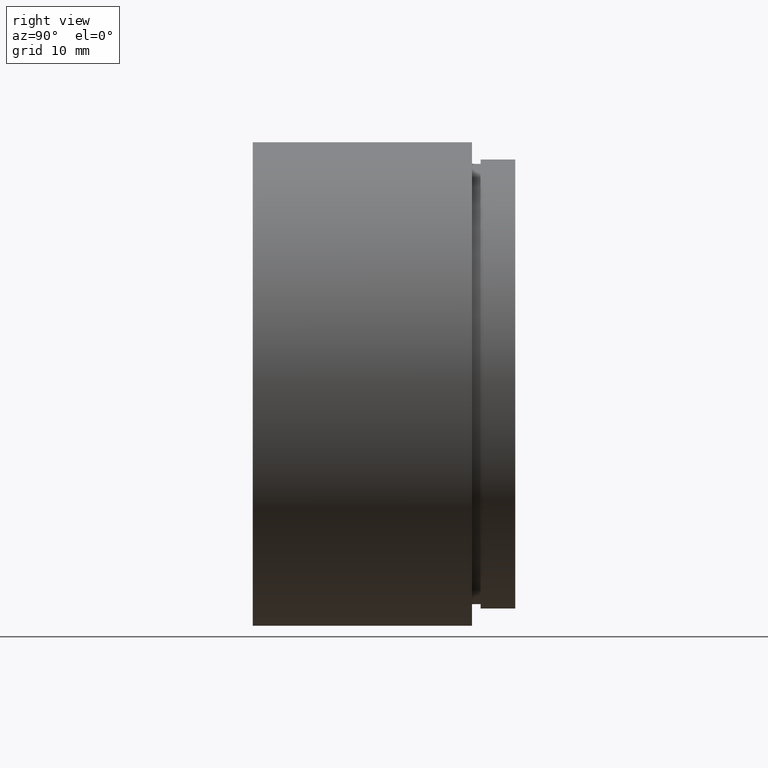
[diagram: clean part render]
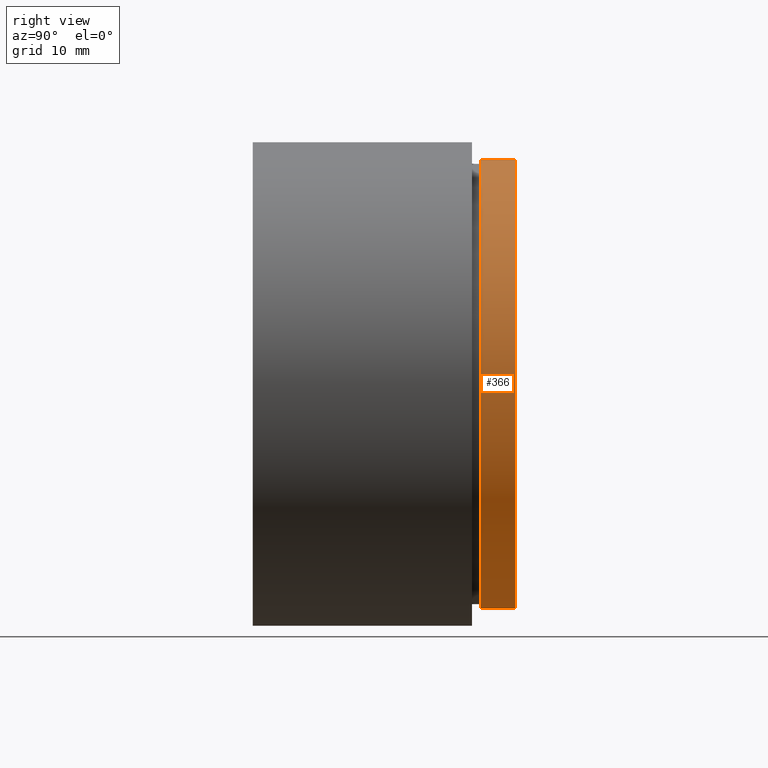
[diagram: same view with one face highlighted and labeled with its STEP entity id]
A machine part, right view. The second image highlights one B-rep face of the part: STEP entity #366.
In plain terms, the highlighted cylindrical surface (partial cylindrical patch) has radius 26 mm, axis along (-0, 1, -0).
Its self-contained STEP definition (entity closure, byte-faithful):
#13 = CIRCLE ( 'NONE', #137, 26.00000000000002100 ) ;
#46 = CARTESIAN_POINT ( 'NONE',  ( 0.0000000000000000000, 30.39999999999998400, 26.00000000000001800 ) ) ;
#65 = VECTOR ( 'NONE', #377, 1000.000000000000000 ) ;
#82 = EDGE_CURVE ( 'NONE', #239, #520, #13, .T. ) ;
#86 = VECTOR ( 'NONE', #88, 1000.000000000000000 ) ;
#88 = DIRECTION ( 'NONE',  ( -0.0000000000000000000, 1.000000000000000000, -0.0000000000000000000 ) ) ;
#92 = DIRECTION ( 'NONE',  ( 0.0000000000000000000, 0.0000000000000000000, 1.000000000000000000 ) ) ;
#116 = CARTESIAN_POINT ( 'NONE',  ( 3.184081677783121000E-015, 26.39999999999997700, -26.00000000000002100 ) ) ;
#127 = AXIS2_PLACEMENT_3D ( 'NONE', #471, #283, #338 ) ;
#137 = AXIS2_PLACEMENT_3D ( 'NONE', #447, #258, #584 ) ;
#149 = CARTESIAN_POINT ( 'NONE',  ( 0.0000000000000000000, 161.3761669434274500, 0.0000000000000000000 ) ) ;
#154 = ORIENTED_EDGE ( 'NONE', *, *, #234, .T. ) ;
#186 = EDGE_LOOP ( 'NONE', ( #417, #154, #384, #539 ) ) ;
#194 = LINE ( 'NONE', #230, #86 ) ;
#197 = DIRECTION ( 'NONE',  ( -0.0000000000000000000, 1.000000000000000000, -0.0000000000000000000 ) ) ;
#207 = EDGE_CURVE ( 'NONE', #357, #565, #219, .T. ) ;
#219 = CIRCLE ( 'NONE', #127, 26.00000000000001800 ) ;
#230 = CARTESIAN_POINT ( 'NONE',  ( 3.184081677783120200E-015, 161.3761669434274500, -26.00000000000001800 ) ) ;
#234 = EDGE_CURVE ( 'NONE', #520, #565, #194, .T. ) ;
#239 = VERTEX_POINT ( 'NONE', #606 ) ;
#258 = DIRECTION ( 'NONE',  ( -0.0000000000000000000, 1.000000000000000000, -0.0000000000000000000 ) ) ;
#262 = EDGE_CURVE ( 'NONE', #239, #357, #577, .T. ) ;
#283 = DIRECTION ( 'NONE',  ( -0.0000000000000000000, 1.000000000000000000, -0.0000000000000000000 ) ) ;
#338 = DIRECTION ( 'NONE',  ( 0.0000000000000000000, 0.0000000000000000000, 1.000000000000000000 ) ) ;
#339 = CARTESIAN_POINT ( 'NONE',  ( 0.0000000000000000000, 161.3761669434274500, 26.00000000000001800 ) ) ;
#357 = VERTEX_POINT ( 'NONE', #46 ) ;
#366 = ADVANCED_FACE ( 'NONE', ( #540 ), #500, .T. ) ;
#377 = DIRECTION ( 'NONE',  ( -0.0000000000000000000, 1.000000000000000000, -0.0000000000000000000 ) ) ;
#382 = AXIS2_PLACEMENT_3D ( 'NONE', #149, #197, #92 ) ;
#384 = ORIENTED_EDGE ( 'NONE', *, *, #207, .F. ) ;
#417 = ORIENTED_EDGE ( 'NONE', *, *, #82, .T. ) ;
#447 = CARTESIAN_POINT ( 'NONE',  ( 0.0000000000000000000, 26.39999999999997700, 0.0000000000000000000 ) ) ;
#471 = CARTESIAN_POINT ( 'NONE',  ( 0.0000000000000000000, 30.39999999999998400, 0.0000000000000000000 ) ) ;
#500 = CYLINDRICAL_SURFACE ( 'NONE', #382, 26.00000000000001800 ) ;
#520 = VERTEX_POINT ( 'NONE', #116 ) ;
#539 = ORIENTED_EDGE ( 'NONE', *, *, #262, .F. ) ;
#540 = FACE_OUTER_BOUND ( 'NONE', #186, .T. ) ;
#565 = VERTEX_POINT ( 'NONE', #582 ) ;
#577 = LINE ( 'NONE', #339, #65 ) ;
#582 = CARTESIAN_POINT ( 'NONE',  ( 3.184081677783120200E-015, 30.39999999999998400, -26.00000000000001800 ) ) ;
#584 = DIRECTION ( 'NONE',  ( 0.0000000000000000000, 0.0000000000000000000, 1.000000000000000000 ) ) ;
#606 = CARTESIAN_POINT ( 'NONE',  ( 0.0000000000000000000, 26.39999999999997700, 26.00000000000002100 ) ) ;